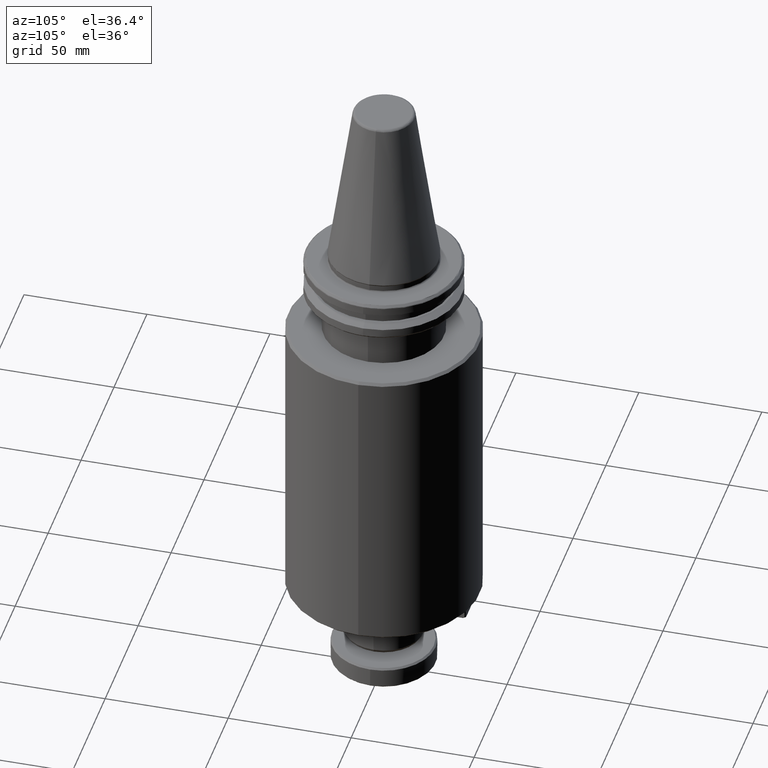
[diagram: clean part render]
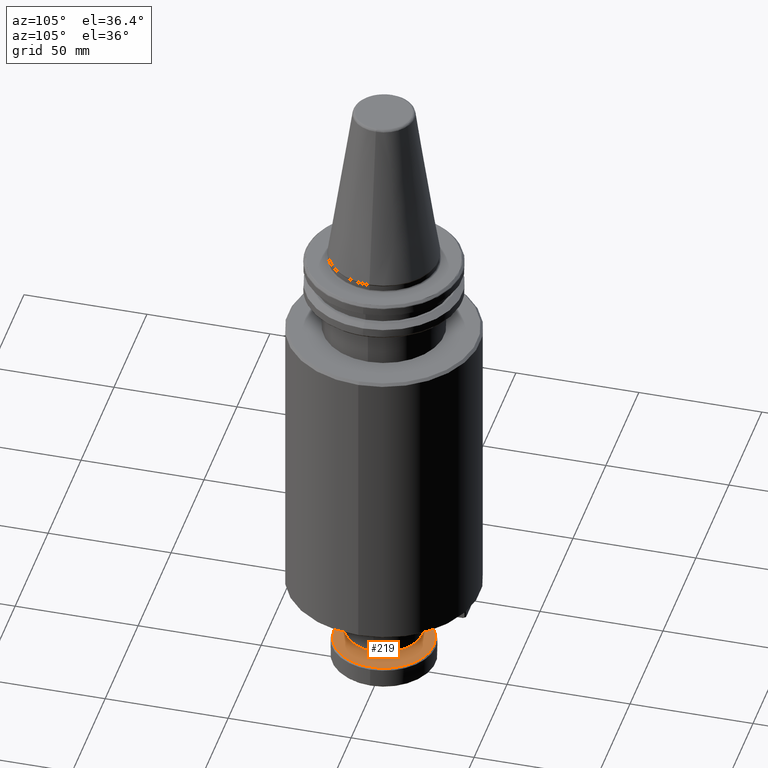
[diagram: same view with one face highlighted and labeled with its STEP entity id]
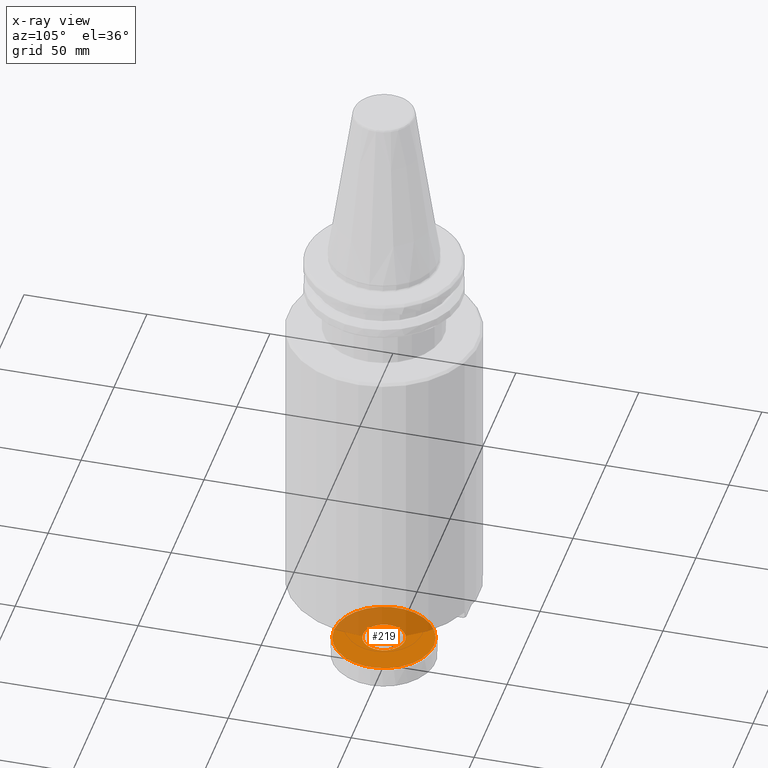
[diagram: x-ray of the same camera — body ghosted, the highlighted face saturated]
A machine part, auxiliary view. The second image highlights one B-rep face of the part: STEP entity #219.
The next image is the same camera in x-ray: the body ghosted, the highlighted face saturated — about 43% of this face is hidden behind the body in this view.
In plain terms, the highlighted planar face has unit normal (0, 0, 1).
Its self-contained STEP definition (entity closure, byte-faithful):
#34 = CARTESIAN_POINT ( 'NONE',  ( 0.5195487043957486300, -8.499967583596234300, -188.0000000000000300 ) ) ;
#36 = CARTESIAN_POINT ( 'NONE',  ( 8.364359669423917500, -1.512824100801078800, -188.0000000000000600 ) ) ;
#41 = VERTEX_POINT ( 'NONE', #4280 ) ;
#44 = B_SPLINE_CURVE_WITH_KNOTS ( 'NONE', 3,
 ( #3405, #3656, #3572, #3660, #4163, #3478, #3570, #3509, #3264, #3705, #3818, #3711, #3561, #3411, #3037, #3013, #3123, #3684, #3171, #3164, #3111, #3134, #3356, #3350, #3295, #3777, #3260, #3238, #3227, #3225, #3205, #4005, #4074, #3736, #2003, #3878, #1994, #1991, #1996, #4070, #3651, #3652, #3706, #3710, #4285, #2995, #3002, #3955, #3749, #4046, #3517, #3855, #3991, #3579, #4278, #3133, #3130, #3352, #2895, #1803, #1806, #1809, #2879, #2883, #2510, #2503, #2558, #2551, #2543, #2606, #2597, #2589, #2613, #2612, #2608, #2621, #2618, #2616, #2635, #2631, #2627, #2841, #2829, #2827, #2656, #2641, #2639, #2665, #2662, #2659 ),
 .UNSPECIFIED., .F., .F.,
 ( 4, 1, 1, 1, 2, 2, 1, 1, 1, 2, 2, 1, 1, 2, 2, 2, 1, 1, 2, 2, 1, 1, 1, 2, 2, 1, 1, 1, 2, 2, 2, 1, 1, 1, 2, 2, 1, 1, 1, 2, 2, 1, 1, 2, 2, 2, 1, 1, 2, 2, 1, 1, 1, 2, 2, 1, 1, 1, 2, 2, 4 ),
 ( 0.0000000000000000000, 0.03125000000000040200, 0.04687500000000061800, 0.05468750000000072900, 0.05859375000000077000, 0.06250000000000080500, 0.09375000000000105500, 0.1093750000000011900, 0.1171875000000012600, 0.1210937500000012900, 0.1250000000000013300, 0.1562500000000014700, 0.1718750000000016100, 0.1796875000000016900, 0.1875000000000018000, 0.2500000000000023300, 0.2812500000000026100, 0.2968750000000027800, 0.3046875000000028900, 0.3125000000000029400, 0.3437500000000033900, 0.3593750000000035000, 0.3671875000000035500, 0.3710937500000036100, 0.3750000000000036600, 0.4062500000000038900, 0.4218750000000040000, 0.4296875000000040500, 0.4335937500000041100, 0.4375000000000041100, 0.5000000000000045500, 0.5312500000000048800, 0.5468750000000048800, 0.5546875000000048800, 0.5585937500000050000, 0.5625000000000050000, 0.5937500000000052200, 0.6093750000000053300, 0.6171875000000054400, 0.6210937500000054400, 0.6250000000000054400, 0.6562500000000053300, 0.6718750000000052200, 0.6796875000000051100, 0.6875000000000050000, 0.7500000000000044400, 0.7812500000000042200, 0.7968750000000038900, 0.8046875000000037700, 0.8125000000000036600, 0.8437500000000034400, 0.8593750000000033300, 0.8671875000000033300, 0.8710937500000032200, 0.8750000000000031100, 0.9062500000000024400, 0.9218750000000021100, 0.9296875000000018900, 0.9335937500000017800, 0.9375000000000017800, 1.000000000000000000 ),
 .UNSPECIFIED. ) ;
#138 = CARTESIAN_POINT ( 'NONE',  ( -4.224513483194785500, -7.378379923617172800, -188.0000000000000900 ) ) ;
#181 = CARTESIAN_POINT ( 'NONE',  ( -5.595701791465681500, -6.425060948544843800, -188.0000000000001100 ) ) ;
#219 = ADVANCED_FACE ( 'NONE', ( #2545, #2241 ), #2522, .T. ) ;
#253 = EDGE_CURVE ( 'NONE', #4142, #1529, #2338, .T. ) ;
#256 = VERTEX_POINT ( 'NONE', #1940 ) ;
#274 = CARTESIAN_POINT ( 'NONE',  ( -8.345343225972836600, -1.614434768015597500, -188.0000000000000900 ) ) ;
#322 = CARTESIAN_POINT ( 'NONE',  ( -8.500000000000000000, 1.318459257955872900E-015, -188.0000000000000600 ) ) ;
#388 = CARTESIAN_POINT ( 'NONE',  ( 3.361156064150995000, -7.807809836555613000, -188.0000000000000000 ) ) ;
#394 = CARTESIAN_POINT ( 'NONE',  ( -6.511282033287246300, -5.477695403144871900, -188.0000000000000600 ) ) ;
#446 = CARTESIAN_POINT ( 'NONE',  ( 4.040512574543396500, -7.487979943526811500, -188.0000000000000600 ) ) ;
#475 = CARTESIAN_POINT ( 'NONE',  ( 7.952956208293676000, -3.000284323784332900, -188.0000000000000900 ) ) ;
#551 = DIRECTION ( 'NONE',  ( 1.000000000000000000, 0.0000000000000000000, -0.0000000000000000000 ) ) ;
#558 = CARTESIAN_POINT ( 'NONE',  ( -4.530583542577323500, -7.192286245344644300, -188.0000000000001400 ) ) ;
#606 = CARTESIAN_POINT ( 'NONE',  ( 7.928379597049124400, -3.064629149131553400, -188.0000000000000900 ) ) ;
#620 = ORIENTED_EDGE ( 'NONE', *, *, #2160, .T. ) ;
#702 = DIRECTION ( 'NONE',  ( 0.0000000000000000000, 1.000000000000000000, 0.0000000000000000000 ) ) ;
#758 = CARTESIAN_POINT ( 'NONE',  ( 4.773540549320940400, -7.033399776735619100, -188.0000000000000300 ) ) ;
#812 = CARTESIAN_POINT ( 'NONE',  ( -8.452698543846960200, -1.035641461792486300, -188.0000000000001100 ) ) ;
#836 = EDGE_CURVE ( 'NONE', #256, #41, #44, .T. ) ;
#893 = CARTESIAN_POINT ( 'NONE',  ( 1.682006765307875900, -8.331990669844827800, -188.0000000000001700 ) ) ;
#913 = EDGE_CURVE ( 'NONE', #1529, #4142, #4145, .T. ) ;
#952 = CARTESIAN_POINT ( 'NONE',  ( 8.430525986275226200, -1.098300496105619300, -188.0000000000000600 ) ) ;
#1013 = CARTESIAN_POINT ( 'NONE',  ( 3.590557665653934600, -7.706809493146625600, -188.0000000000000600 ) ) ;
#1016 = CARTESIAN_POINT ( 'NONE',  ( 0.0000000000000000000, 20.30000000000000100, -188.0000000000000600 ) ) ;
#1075 = ORIENTED_EDGE ( 'NONE', *, *, #253, .T. ) ;
#1116 = CARTESIAN_POINT ( 'NONE',  ( -2.903598142560772200, -7.989218698386559400, -188.0000000000000900 ) ) ;
#1148 = CARTESIAN_POINT ( 'NONE',  ( 6.425060948543477800, -5.595701791466567000, -188.0000000000000000 ) ) ;
#1162 = B_SPLINE_CURVE_WITH_KNOTS ( 'NONE', 3,
 ( #2100, #1259, #3346, #952, #3051, #3535, #2709, #36, #2769, #3315, #1564, #2407, #475, #606, #2792, #4014, #1357, #3471, #3302, #1745, #2547, #3078, #1148, #2764, #1699, #3199, #3575, #758, #3968, #2243, #446, #1013, #388, #3867, #1287, #1453, #3612, #3647, #1556, #1862, #893, #1531, #3857, #2836, #34, #2524, #4248, #1459, #4151, #3276, #3552, #1511, #2373, #2963, #1675, #1116, #2252, #3927, #4107, #4119, #2005, #138, #3528, #558, #3891, #4274, #181, #4146, #394, #3210, #1229, #1559, #2532, #3992, #2537, #3617, #2766, #1273, #2222, #3319, #3532, #2285, #1796, #3911, #2567, #274, #1644, #812, #2649, #322 ),
 .UNSPECIFIED., .F., .F.,
 ( 4, 1, 1, 1, 2, 2, 1, 1, 1, 2, 2, 1, 1, 2, 2, 2, 1, 1, 2, 2, 1, 1, 1, 2, 2, 1, 1, 1, 2, 2, 2, 1, 1, 1, 2, 2, 1, 1, 1, 2, 2, 1, 1, 2, 2, 2, 1, 1, 2, 2, 1, 1, 1, 2, 2, 1, 1, 1, 2, 2, 4 ),
 ( 0.0000000000000000000, 0.03124999999999997200, 0.04687499999999995800, 0.05468749999999993800, 0.05859374999999991700, 0.06249999999999988900, 0.09374999999999979200, 0.1093749999999997600, 0.1171874999999997100, 0.1210937499999996300, 0.1249999999999995600, 0.1562499999999987800, 0.1718749999999983900, 0.1796874999999981100, 0.1874999999999978600, 0.2499999999999961100, 0.2812499999999953400, 0.2968749999999948900, 0.3046874999999947300, 0.3124999999999945600, 0.3437499999999940000, 0.3593749999999936200, 0.3671874999999934500, 0.3710937499999933400, 0.3749999999999932300, 0.4062499999999927300, 0.4218749999999924500, 0.4296874999999923400, 0.4335937499999922800, 0.4374999999999922300, 0.4999999999999920600, 0.5312499999999920100, 0.5468749999999920100, 0.5546874999999920100, 0.5585937499999920100, 0.5624999999999920100, 0.5937499999999920100, 0.6093749999999920100, 0.6171874999999920100, 0.6210937499999921200, 0.6249999999999922300, 0.6562499999999931200, 0.6718749999999935600, 0.6796874999999937800, 0.6874999999999940000, 0.7499999999999954500, 0.7812499999999962300, 0.7968749999999966700, 0.8046874999999968900, 0.8124999999999971100, 0.8437499999999978900, 0.8593749999999983300, 0.8671874999999985600, 0.8710937499999985600, 0.8749999999999985600, 0.9062499999999991100, 0.9218749999999993300, 0.9296874999999994400, 0.9335937499999994400, 0.9374999999999993300, 1.000000000000000000 ),
 .UNSPECIFIED. ) ;
#1229 = CARTESIAN_POINT ( 'NONE',  ( -6.950149218416448200, -4.893998744696683700, -188.0000000000001100 ) ) ;
#1243 = EDGE_LOOP ( 'NONE', ( #1398, #1075 ) ) ;
#1259 = CARTESIAN_POINT ( 'NONE',  ( 8.500000000000003600, -0.2598619697419642400, -188.0000000000001100 ) ) ;
#1273 = CARTESIAN_POINT ( 'NONE',  ( -7.849292605573390700, -3.261893060566090100, -188.0000000000000300 ) ) ;
#1287 = CARTESIAN_POINT ( 'NONE',  ( 3.195507051172955700, -7.876547097709281100, -188.0000000000000600 ) ) ;
#1357 = CARTESIAN_POINT ( 'NONE',  ( 7.619718477362067000, -3.786219645571358600, -188.0000000000001100 ) ) ;
#1398 = ORIENTED_EDGE ( 'NONE', *, *, #913, .T. ) ;
#1453 = CARTESIAN_POINT ( 'NONE',  ( 3.160822777723687200, -7.890522775366752000, -188.0000000000001100 ) ) ;
#1459 = CARTESIAN_POINT ( 'NONE',  ( -1.098185498079003300, -8.430547259540190900, -188.0000000000000600 ) ) ;
#1511 = CARTESIAN_POINT ( 'NONE',  ( -1.512824100801059400, -8.364359669423922800, -188.0000000000000600 ) ) ;
#1529 = VERTEX_POINT ( 'NONE', #1016 ) ;
#1531 = CARTESIAN_POINT ( 'NONE',  ( 1.614434768015474900, -8.345343225972852600, -188.0000000000001400 ) ) ;
#1535 = ORIENTED_EDGE ( 'NONE', *, *, #836, .T. ) ;
#1556 = CARTESIAN_POINT ( 'NONE',  ( 2.018039557831497800, -8.259026333418164600, -188.0000000000001100 ) ) ;
#1559 = CARTESIAN_POINT ( 'NONE',  ( -7.033399776735830500, -4.773540549320621600, -188.0000000000000600 ) ) ;
#1564 = CARTESIAN_POINT ( 'NONE',  ( 8.069614187852538500, -2.676814450618722600, -188.0000000000001100 ) ) ;
#1644 = CARTESIAN_POINT ( 'NONE',  ( -8.352182949521752800, -1.578626225735150900, -188.0000000000000900 ) ) ;
#1670 = DIRECTION ( 'NONE',  ( 0.0000000000000000000, 0.0000000000000000000, 1.000000000000000000 ) ) ;
#1675 = CARTESIAN_POINT ( 'NONE',  ( -2.676814450618943300, -8.069614187852510100, -188.0000000000000600 ) ) ;
#1699 = CARTESIAN_POINT ( 'NONE',  ( 5.477695403146064700, -6.511282033286466500, -188.0000000000000600 ) ) ;
#1745 = CARTESIAN_POINT ( 'NONE',  ( 7.192286245344697600, -4.530583542577234700, -188.0000000000000600 ) ) ;
#1796 = CARTESIAN_POINT ( 'NONE',  ( -8.259026333418079300, -2.018039557832159900, -188.0000000000000900 ) ) ;
#1803 = CARTESIAN_POINT ( 'NONE',  ( 3.395722105693076600, 7.797549277625837900, -188.0000000000001100 ) ) ;
#1806 = CARTESIAN_POINT ( 'NONE',  ( 3.786219645568159800, 7.619718477363205600, -188.0000000000000300 ) ) ;
#1809 = CARTESIAN_POINT ( 'NONE',  ( 4.224513483192146700, 7.378379923618188000, -188.0000000000000900 ) ) ;
#1862 = CARTESIAN_POINT ( 'NONE',  ( 1.783187936026633200, -8.311361685092803600, -188.0000000000000300 ) ) ;
#1940 = CARTESIAN_POINT ( 'NONE',  ( -8.500000000000000000, 1.318459257955872900E-015, -188.0000000000000600 ) ) ;
#1959 = DIRECTION ( 'NONE',  ( 0.0000000000000000000, 1.000000000000000000, 0.0000000000000000000 ) ) ;
#1964 = DIRECTION ( 'NONE',  ( -0.0000000000000000000, -6.608470384673542100E-016, 1.000000000000000000 ) ) ;
#1967 = CARTESIAN_POINT ( 'NONE',  ( 0.0000000000000000000, -4.625929269271520400E-016, -188.0000000000000600 ) ) ;
#1991 = CARTESIAN_POINT ( 'NONE',  ( -2.482791695301787900, 8.137551414384809300, -188.0000000000000600 ) ) ;
#1994 = CARTESIAN_POINT ( 'NONE',  ( -2.872663059703036500, 8.004622828339442700, -188.0000000000001100 ) ) ;
#1996 = CARTESIAN_POINT ( 'NONE',  ( -2.018039557843631600, 8.259026333414899700, -188.0000000000000900 ) ) ;
#2003 = CARTESIAN_POINT ( 'NONE',  ( -3.195507051173887000, 7.876547097708620300, -188.0000000000000600 ) ) ;
#2005 = CARTESIAN_POINT ( 'NONE',  ( -3.786219645571683700, -7.619718477361852000, -188.0000000000000600 ) ) ;
#2100 = CARTESIAN_POINT ( 'NONE',  ( 8.500000000000000000, 0.0000000000000000000, -188.0000000000000600 ) ) ;
#2160 = EDGE_CURVE ( 'NONE', #41, #256, #1162, .T. ) ;
#2222 = CARTESIAN_POINT ( 'NONE',  ( -7.876547097709195800, -3.195507051173089000, -188.0000000000000600 ) ) ;
#2241 = FACE_OUTER_BOUND ( 'NONE', #1243, .T. ) ;
#2243 = CARTESIAN_POINT ( 'NONE',  ( 4.411019706534802700, -7.271562279049543800, -188.0000000000000000 ) ) ;
#2252 = CARTESIAN_POINT ( 'NONE',  ( -3.000284323784408800, -7.952956208293666200, -188.0000000000001400 ) ) ;
#2260 = DIRECTION ( 'NONE',  ( -0.0000000000000000000, -6.608470384673542100E-016, 1.000000000000000000 ) ) ;
#2285 = CARTESIAN_POINT ( 'NONE',  ( -8.137551414389044200, -2.482791695286490800, -188.0000000000001100 ) ) ;
#2338 = CIRCLE ( 'NONE', #3376, 20.30000000000000100 ) ;
#2373 = CARTESIAN_POINT ( 'NONE',  ( -1.817580703120627900, -8.307983328476572300, -188.0000000000000600 ) ) ;
#2407 = CARTESIAN_POINT ( 'NONE',  ( 7.989218698386575400, -2.903598142560641200, -188.0000000000000900 ) ) ;
#2503 = CARTESIAN_POINT ( 'NONE',  ( 5.142155221134818700, 6.793583944551599500, -188.0000000000000300 ) ) ;
#2510 = CARTESIAN_POINT ( 'NONE',  ( 4.589923864103573300, 7.154571582959405900, -188.0000000000000900 ) ) ;
#2522 = PLANE ( 'NONE',  #3075 ) ;
#2524 = CARTESIAN_POINT ( 'NONE',  ( -0.2597743521978780300, -8.500016208201881100, -188.0000000000000000 ) ) ;
#2532 = CARTESIAN_POINT ( 'NONE',  ( -7.075186736935877200, -4.711348703083299200, -188.0000000000001400 ) ) ;
#2537 = CARTESIAN_POINT ( 'NONE',  ( -7.487979943526180900, -4.040512574544366400, -188.0000000000000900 ) ) ;
#2543 = CARTESIAN_POINT ( 'NONE',  ( 6.511282033290760800, 5.477695403140533200, -188.0000000000000600 ) ) ;
#2545 = FACE_BOUND ( 'NONE', #3690, .T. ) ;
#2547 = CARTESIAN_POINT ( 'NONE',  ( 7.154571582959468900, -4.589923864103686100, -188.0000000000000600 ) ) ;
#2551 = CARTESIAN_POINT ( 'NONE',  ( 6.217760564397650600, 5.803080985853581500, -188.0000000000000300 ) ) ;
#2558 = CARTESIAN_POINT ( 'NONE',  ( 5.595701791461660700, 6.425060948549798900, -188.0000000000000600 ) ) ;
#2567 = CARTESIAN_POINT ( 'NONE',  ( -8.331990669844801200, -1.682006765308108300, -188.0000000000000600 ) ) ;
#2589 = CARTESIAN_POINT ( 'NONE',  ( 7.033399776736766600, 4.773540549319459800, -187.9999999999999700 ) ) ;
#2597 = CARTESIAN_POINT ( 'NONE',  ( 6.950149218418135700, 4.893998744694593000, -188.0000000000000600 ) ) ;
#2606 = CARTESIAN_POINT ( 'NONE',  ( 6.823084891243332200, 5.072886587586666900, -188.0000000000000600 ) ) ;
#2608 = CARTESIAN_POINT ( 'NONE',  ( 7.487979943525985500, 4.040512574543657600, -188.0000000000000900 ) ) ;
#2612 = CARTESIAN_POINT ( 'NONE',  ( 7.271562279049070400, 4.411019706534952800, -188.0000000000000300 ) ) ;
#2613 = CARTESIAN_POINT ( 'NONE',  ( 7.075186736935903800, 4.711348703083402300, -188.0000000000001100 ) ) ;
#2616 = CARTESIAN_POINT ( 'NONE',  ( 7.849292605573340100, 3.261893060565900900, -188.0000000000000300 ) ) ;
#2618 = CARTESIAN_POINT ( 'NONE',  ( 7.807809836555254200, 3.361156064151106000, -188.0000000000001400 ) ) ;
#2621 = CARTESIAN_POINT ( 'NONE',  ( 7.706809493146005600, 3.590557665654126500, -188.0000000000000600 ) ) ;
#2624 = CARTESIAN_POINT ( 'NONE',  ( 0.0000000000000000000, -4.625929269271520400E-016, -188.0000000000000600 ) ) ;
#2627 = CARTESIAN_POINT ( 'NONE',  ( 8.004622828340597400, 2.872663059698152800, -188.0000000000000300 ) ) ;
#2631 = CARTESIAN_POINT ( 'NONE',  ( 7.890522775366915400, 3.160822777723137500, -188.0000000000000300 ) ) ;
#2635 = CARTESIAN_POINT ( 'NONE',  ( 7.876547097709166500, 3.195507051172989500, -187.9999999999999700 ) ) ;
#2639 = CARTESIAN_POINT ( 'NONE',  ( 8.352182949521752800, 1.578626225734799600, -188.0000000000000600 ) ) ;
#2641 = CARTESIAN_POINT ( 'NONE',  ( 8.345343225972529300, 1.614434768016530500, -188.0000000000000900 ) ) ;
#2649 = CARTESIAN_POINT ( 'NONE',  ( -8.500000000000001800, -0.5200794799580728000, -188.0000000000000900 ) ) ;
#2656 = CARTESIAN_POINT ( 'NONE',  ( 8.331990669844216800, 1.682006765309884900, -188.0000000000000900 ) ) ;
#2659 = CARTESIAN_POINT ( 'NONE',  ( 8.500000000000000000, 0.0000000000000000000, -188.0000000000000600 ) ) ;
#2662 = CARTESIAN_POINT ( 'NONE',  ( 8.499999999999996400, 0.5200794799637127300, -187.9999999999999400 ) ) ;
#2665 = CARTESIAN_POINT ( 'NONE',  ( 8.452698543846962000, 1.035641461798116700, -188.0000000000001100 ) ) ;
#2709 = CARTESIAN_POINT ( 'NONE',  ( 8.369736224266041800, -1.482744684833051700, -188.0000000000000000 ) ) ;
#2764 = CARTESIAN_POINT ( 'NONE',  ( 5.803080985856743400, -6.217760564395201000, -188.0000000000000900 ) ) ;
#2766 = CARTESIAN_POINT ( 'NONE',  ( -7.807809836555336800, -3.361156064151420000, -188.0000000000000900 ) ) ;
#2769 = CARTESIAN_POINT ( 'NONE',  ( 8.307983328476588300, -1.817580703120457800, -188.0000000000000300 ) ) ;
#2792 = CARTESIAN_POINT ( 'NONE',  ( 7.916406969206341200, -3.095440396973550400, -188.0000000000000600 ) ) ;
#2827 = CARTESIAN_POINT ( 'NONE',  ( 8.311361685091791100, 1.783187936029971800, -188.0000000000000900 ) ) ;
#2829 = CARTESIAN_POINT ( 'NONE',  ( 8.259026333416413100, 2.018039557837220300, -188.0000000000000600 ) ) ;
#2836 = CARTESIAN_POINT ( 'NONE',  ( 1.035816813051431400, -8.452666083385551600, -188.0000000000000600 ) ) ;
#2841 = CARTESIAN_POINT ( 'NONE',  ( 8.137551414386829100, 2.482791695293238700, -188.0000000000000300 ) ) ;
#2879 = CARTESIAN_POINT ( 'NONE',  ( 4.408649422410217500, 7.267691410562047600, -188.0000000000000900 ) ) ;
#2883 = CARTESIAN_POINT ( 'NONE',  ( 4.530583542576381200, 7.192286245345003200, -188.0000000000000300 ) ) ;
#2895 = CARTESIAN_POINT ( 'NONE',  ( 3.095440396973776000, 7.916406969206263100, -188.0000000000000600 ) ) ;
#2963 = CARTESIAN_POINT ( 'NONE',  ( -2.218516657055258800, -8.213537217114558000, -188.0000000000000600 ) ) ;
#2995 = CARTESIAN_POINT ( 'NONE',  ( 0.2597743522040911200, 8.500016208201033800, -188.0000000000000300 ) ) ;
#3002 = CARTESIAN_POINT ( 'NONE',  ( 0.6479408595450608700, 8.482290318294422700, -188.0000000000000900 ) ) ;
#3013 = CARTESIAN_POINT ( 'NONE',  ( -7.797549277625415200, 3.395722105694082500, -188.0000000000000900 ) ) ;
#3037 = CARTESIAN_POINT ( 'NONE',  ( -7.916406969206314600, 3.095440396973649500, -188.0000000000000300 ) ) ;
#3051 = CARTESIAN_POINT ( 'NONE',  ( 8.396897607291419900, -1.322720827863384400, -188.0000000000000600 ) ) ;
#3075 = AXIS2_PLACEMENT_3D ( 'NONE', #3354, #1670, #551 ) ;
#3078 = CARTESIAN_POINT ( 'NONE',  ( 6.793583944551083500, -5.142155221133914500, -188.0000000000000600 ) ) ;
#3111 = CARTESIAN_POINT ( 'NONE',  ( -7.154571582959575500, 4.589923864103397500, -188.0000000000000000 ) ) ;
#3123 = CARTESIAN_POINT ( 'NONE',  ( -7.619718477362460400, 3.786219645569930000, -188.0000000000000600 ) ) ;
#3130 = CARTESIAN_POINT ( 'NONE',  ( 3.000284323785150000, 7.952956208293382900, -187.9999999999999700 ) ) ;
#3133 = CARTESIAN_POINT ( 'NONE',  ( 2.903598142562005400, 7.989218698386087800, -188.0000000000001100 ) ) ;
#3134 = CARTESIAN_POINT ( 'NONE',  ( -6.793583944550206900, 5.142155221136209600, -188.0000000000000000 ) ) ;
#3164 = CARTESIAN_POINT ( 'NONE',  ( -7.192286245344806900, 4.530583542576851900, -188.0000000000000300 ) ) ;
#3171 = CARTESIAN_POINT ( 'NONE',  ( -7.267691410561692300, 4.408649422411068400, -188.0000000000000900 ) ) ;
#3199 = CARTESIAN_POINT ( 'NONE',  ( 5.072886587590818200, -6.823084891240115200, -188.0000000000001100 ) ) ;
#3205 = CARTESIAN_POINT ( 'NONE',  ( -4.040512574550139600, 7.487979943522000200, -188.0000000000001100 ) ) ;
#3210 = CARTESIAN_POINT ( 'NONE',  ( -6.823084891240698700, -5.072886587589921200, -188.0000000000000600 ) ) ;
#3225 = CARTESIAN_POINT ( 'NONE',  ( -4.411019706538654700, 7.271562279046792200, -188.0000000000000600 ) ) ;
#3227 = CARTESIAN_POINT ( 'NONE',  ( -4.711348703082473200, 7.075186736936474000, -188.0000000000000600 ) ) ;
#3238 = CARTESIAN_POINT ( 'NONE',  ( -4.773540549319656100, 7.033399776736569500, -188.0000000000000900 ) ) ;
#3260 = CARTESIAN_POINT ( 'NONE',  ( -4.893998744694945600, 6.950149218417778700, -188.0000000000000300 ) ) ;
#3264 = CARTESIAN_POINT ( 'NONE',  ( -8.307983328476670000, 1.817580703120498200, -188.0000000000000300 ) ) ;
#3276 = CARTESIAN_POINT ( 'NONE',  ( -1.418714265009939800, -8.380829974019970800, -188.0000000000000600 ) ) ;
#3295 = CARTESIAN_POINT ( 'NONE',  ( -5.477695403141276600, 6.511282033290020100, -188.0000000000001100 ) ) ;
#3302 = CARTESIAN_POINT ( 'NONE',  ( 7.267691410561496900, -4.408649422411756700, -188.0000000000000600 ) ) ;
#3315 = CARTESIAN_POINT ( 'NONE',  ( 8.213537217114593500, -2.218516657054965700, -188.0000000000000900 ) ) ;
#3319 = CARTESIAN_POINT ( 'NONE',  ( -7.890522775366760800, -3.160822777723620600, -188.0000000000000600 ) ) ;
#3346 = CARTESIAN_POINT ( 'NONE',  ( 8.482261953942609600, -0.6480941902363408500, -188.0000000000000900 ) ) ;
#3350 = CARTESIAN_POINT ( 'NONE',  ( -5.803080985854006900, 6.217760564397228700, -188.0000000000000600 ) ) ;
#3352 = CARTESIAN_POINT ( 'NONE',  ( 3.064629149131983300, 7.928379597048977000, -188.0000000000000900 ) ) ;
#3354 = CARTESIAN_POINT ( 'NONE',  ( 0.0000000000000000000, -8.500000000000000000, -188.0000000000000600 ) ) ;
#3356 = CARTESIAN_POINT ( 'NONE',  ( -6.425060948548955200, 5.595701791462508900, -188.0000000000000600 ) ) ;
#3376 = AXIS2_PLACEMENT_3D ( 'NONE', #2624, #2260, #702 ) ;
#3405 = CARTESIAN_POINT ( 'NONE',  ( -8.500000000000000000, 1.318459257955872900E-015, -188.0000000000000600 ) ) ;
#3411 = CARTESIAN_POINT ( 'NONE',  ( -7.928379597049149300, 3.064629149131560500, -188.0000000000000000 ) ) ;
#3471 = CARTESIAN_POINT ( 'NONE',  ( 7.378379923617330000, -4.224513483194539500, -188.0000000000000600 ) ) ;
#3478 = CARTESIAN_POINT ( 'NONE',  ( -8.380822503051911500, 1.418754651221471900, -187.9999999999999700 ) ) ;
#3509 = CARTESIAN_POINT ( 'NONE',  ( -8.364359669423908600, 1.512824100801075400, -188.0000000000000300 ) ) ;
#3517 = CARTESIAN_POINT ( 'NONE',  ( 1.482723464960597600, 8.369740149689725700, -188.0000000000001400 ) ) ;
#3528 = CARTESIAN_POINT ( 'NONE',  ( -4.408649422411913000, -7.267691410561395700, -188.0000000000001400 ) ) ;
#3532 = CARTESIAN_POINT ( 'NONE',  ( -8.004622828341863900, -2.872663059694295900, -188.0000000000000900 ) ) ;
#3535 = CARTESIAN_POINT ( 'NONE',  ( 8.380822503051913200, -1.418754651221667100, -188.0000000000000600 ) ) ;
#3552 = CARTESIAN_POINT ( 'NONE',  ( -1.482723464959094600, -8.369740149689940600, -188.0000000000000600 ) ) ;
#3561 = CARTESIAN_POINT ( 'NONE',  ( -7.952956208293710600, 3.000284323784346200, -188.0000000000000600 ) ) ;
#3564 = AXIS2_PLACEMENT_3D ( 'NONE', #1967, #1964, #1959 ) ;
#3570 = CARTESIAN_POINT ( 'NONE',  ( -8.369736224266045400, 1.482744684832950400, -188.0000000000001100 ) ) ;
#3572 = CARTESIAN_POINT ( 'NONE',  ( -8.482261953942609600, 0.6480941902355981100, -188.0000000000000900 ) ) ;
#3575 = CARTESIAN_POINT ( 'NONE',  ( 4.893998744697256600, -6.950149218416068000, -188.0000000000000300 ) ) ;
#3579 = CARTESIAN_POINT ( 'NONE',  ( 2.218516657058087600, 8.213537217113476200, -188.0000000000000900 ) ) ;
#3612 = CARTESIAN_POINT ( 'NONE',  ( 2.872663059693793700, -8.004622828341919000, -188.0000000000000300 ) ) ;
#3617 = CARTESIAN_POINT ( 'NONE',  ( -7.706809493146152200, -3.590557665654660300, -188.0000000000000600 ) ) ;
#3647 = CARTESIAN_POINT ( 'NONE',  ( 2.482791695285611100, -8.137551414389152500, -188.0000000000000600 ) ) ;
#3651 = CARTESIAN_POINT ( 'NONE',  ( -1.682006765312136200, 8.331990669843691000, -188.0000000000000600 ) ) ;
#3652 = CARTESIAN_POINT ( 'NONE',  ( -1.614434768017713600, 8.345343225972254000, -188.0000000000000900 ) ) ;
#3656 = CARTESIAN_POINT ( 'NONE',  ( -8.500000000000003600, 0.2598619697415395200, -188.0000000000000900 ) ) ;
#3660 = CARTESIAN_POINT ( 'NONE',  ( -8.430525986275226200, 1.098300496105060400, -188.0000000000000900 ) ) ;
#3684 = CARTESIAN_POINT ( 'NONE',  ( -7.378379923617629300, 4.224513483193470100, -188.0000000000000600 ) ) ;
#3690 = EDGE_LOOP ( 'NONE', ( #1535, #620 ) ) ;
#3705 = CARTESIAN_POINT ( 'NONE',  ( -8.213537217114728500, 2.218516657055031900, -188.0000000000000600 ) ) ;
#3706 = CARTESIAN_POINT ( 'NONE',  ( -1.578615266281549800, 8.352184978300488900, -188.0000000000000300 ) ) ;
#3710 = CARTESIAN_POINT ( 'NONE',  ( -1.035816813050116000, 8.452666083387255100, -188.0000000000000900 ) ) ;
#3711 = CARTESIAN_POINT ( 'NONE',  ( -7.989218698386632200, 2.903598142560668300, -188.0000000000000900 ) ) ;
#3736 = CARTESIAN_POINT ( 'NONE',  ( -3.261893060567608900, 7.849292605572287600, -188.0000000000000000 ) ) ;
#3749 = CARTESIAN_POINT ( 'NONE',  ( 1.322653745685949300, 8.396910016695333200, -188.0000000000000600 ) ) ;
#3777 = CARTESIAN_POINT ( 'NONE',  ( -5.072886587587222900, 6.823084891242778800, -188.0000000000000900 ) ) ;
#3818 = CARTESIAN_POINT ( 'NONE',  ( -8.069614187852636200, 2.676814450618771400, -188.0000000000000600 ) ) ;
#3855 = CARTESIAN_POINT ( 'NONE',  ( 1.512824100800854500, 8.364359669423997400, -188.0000000000000000 ) ) ;
#3857 = CARTESIAN_POINT ( 'NONE',  ( 1.578615266281467600, -8.352184978300588400, -188.0000000000000600 ) ) ;
#3867 = CARTESIAN_POINT ( 'NONE',  ( 3.261893060565836100, -7.849292605573555900, -188.0000000000000600 ) ) ;
#3878 = CARTESIAN_POINT ( 'NONE',  ( -3.160822777722527700, 7.890522775367061000, -188.0000000000000300 ) ) ;
#3891 = CARTESIAN_POINT ( 'NONE',  ( -4.589923864103515600, -7.154571582959581700, -188.0000000000001100 ) ) ;
#3911 = CARTESIAN_POINT ( 'NONE',  ( -8.311361685092755600, -1.783187936027021300, -188.0000000000000900 ) ) ;
#3927 = CARTESIAN_POINT ( 'NONE',  ( -3.064629149131596900, -7.928379597049124400, -188.0000000000001100 ) ) ;
#3955 = CARTESIAN_POINT ( 'NONE',  ( 1.098185498087159700, 8.430547259539080700, -188.0000000000000600 ) ) ;
#3968 = CARTESIAN_POINT ( 'NONE',  ( 4.711348703083437800, -7.075186736935787500, -188.0000000000000900 ) ) ;
#3991 = CARTESIAN_POINT ( 'NONE',  ( 1.817580703122244000, 8.307983328475952300, -188.0000000000000600 ) ) ;
#3992 = CARTESIAN_POINT ( 'NONE',  ( -7.271562279049179600, -4.411019706535359600, -188.0000000000000300 ) ) ;
#3996 = CARTESIAN_POINT ( 'NONE',  ( 2.528895640239286100E-015, -20.30000000000000100, -188.0000000000000600 ) ) ;
#4005 = CARTESIAN_POINT ( 'NONE',  ( -3.590557665658989300, 7.706809493143023100, -188.0000000000000900 ) ) ;
#4014 = CARTESIAN_POINT ( 'NONE',  ( 7.797549277625184200, -3.395722105694900100, -188.0000000000000900 ) ) ;
#4046 = CARTESIAN_POINT ( 'NONE',  ( 1.418714265012801700, 8.380829974019571100, -188.0000000000000900 ) ) ;
#4070 = CARTESIAN_POINT ( 'NONE',  ( -1.783187936033711100, 8.311361685090908200, -188.0000000000001100 ) ) ;
#4074 = CARTESIAN_POINT ( 'NONE',  ( -3.361156064153943700, 7.807809836553510700, -188.0000000000000900 ) ) ;
#4107 = CARTESIAN_POINT ( 'NONE',  ( -3.095440396973528200, -7.916406969206356300, -188.0000000000000600 ) ) ;
#4119 = CARTESIAN_POINT ( 'NONE',  ( -3.395722105695088800, -7.797549277625065200, -188.0000000000000900 ) ) ;
#4142 = VERTEX_POINT ( 'NONE', #3996 ) ;
#4145 = CIRCLE ( 'NONE', #3564, 20.30000000000000100 ) ;
#4146 = CARTESIAN_POINT ( 'NONE',  ( -6.217760564395646000, -5.803080985856059500, -187.9999999999999700 ) ) ;
#4151 = CARTESIAN_POINT ( 'NONE',  ( -1.322653745681191800, -8.396910016695988700, -188.0000000000000900 ) ) ;
#4163 = CARTESIAN_POINT ( 'NONE',  ( -8.396897607291425200, 1.322720827863058700, -188.0000000000001100 ) ) ;
#4248 = CARTESIAN_POINT ( 'NONE',  ( -0.6479408595341882300, -8.482290318295906000, -188.0000000000001100 ) ) ;
#4274 = CARTESIAN_POINT ( 'NONE',  ( -5.142155221135281500, -6.793583944550191800, -188.0000000000000300 ) ) ;
#4278 = CARTESIAN_POINT ( 'NONE',  ( 2.676814450621062000, 8.069614187851694700, -188.0000000000001400 ) ) ;
#4280 = CARTESIAN_POINT ( 'NONE',  ( 8.500000000000000000, 0.0000000000000000000, -188.0000000000000600 ) ) ;
#4285 = CARTESIAN_POINT ( 'NONE',  ( -0.5195487044081802400, 8.499967583597934300, -188.0000000000000600 ) ) ;